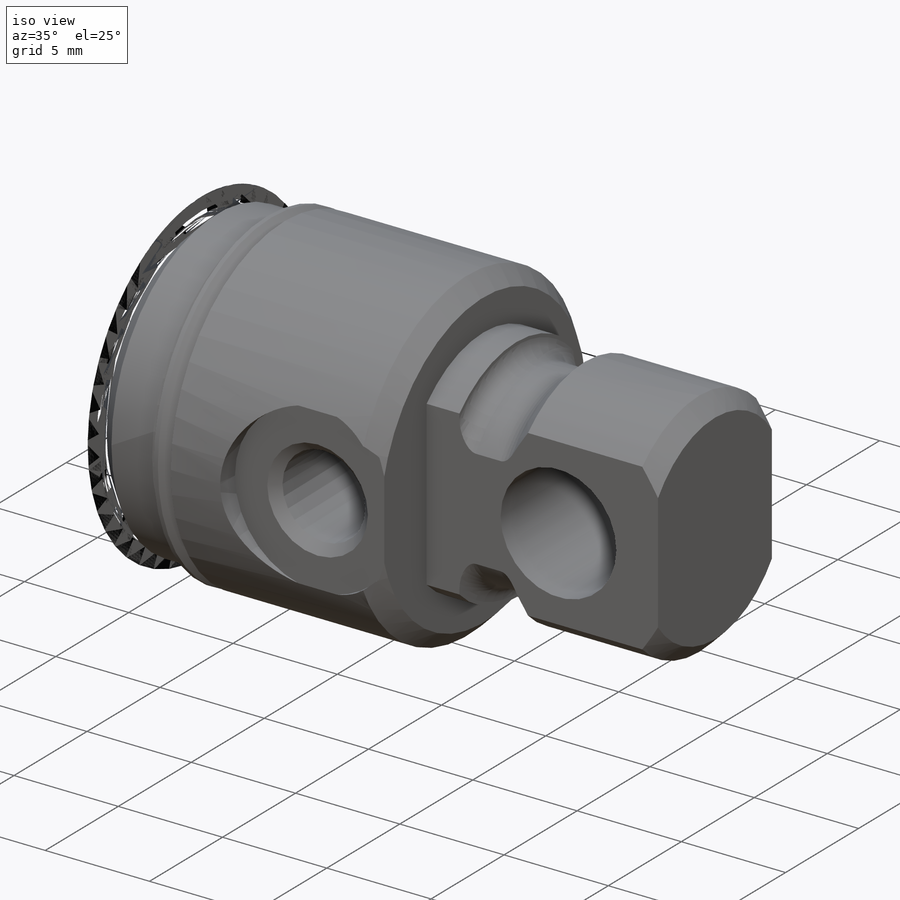
[diagram: iso view]
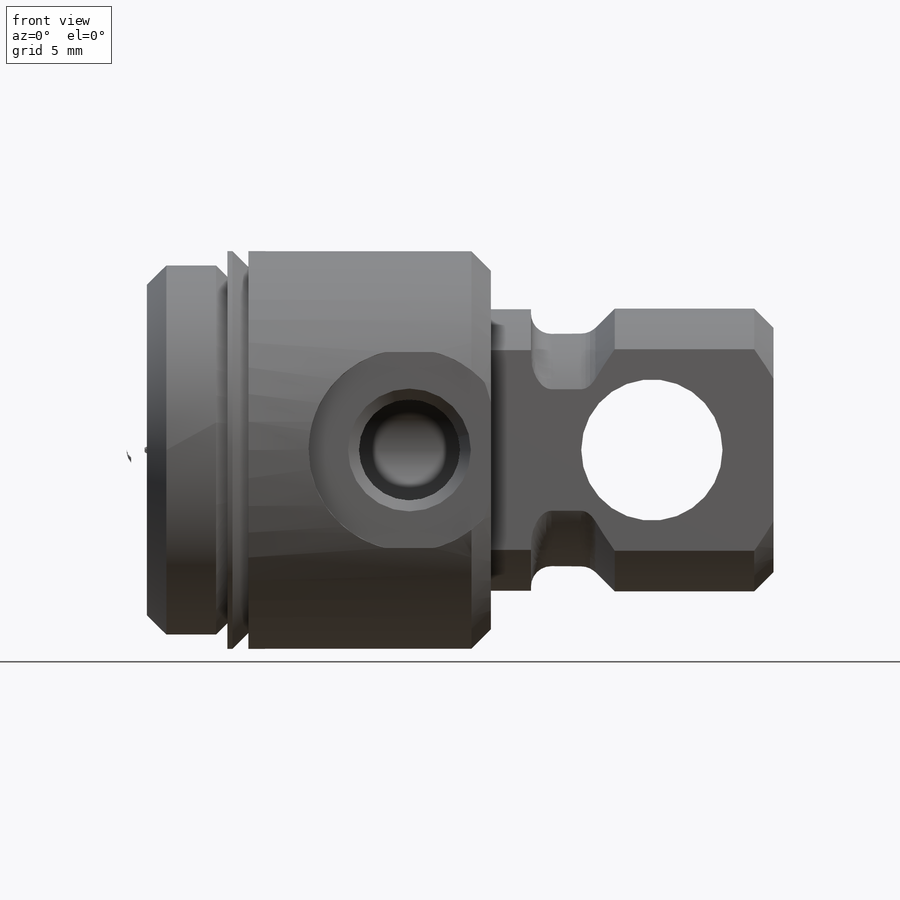
[diagram: front view]
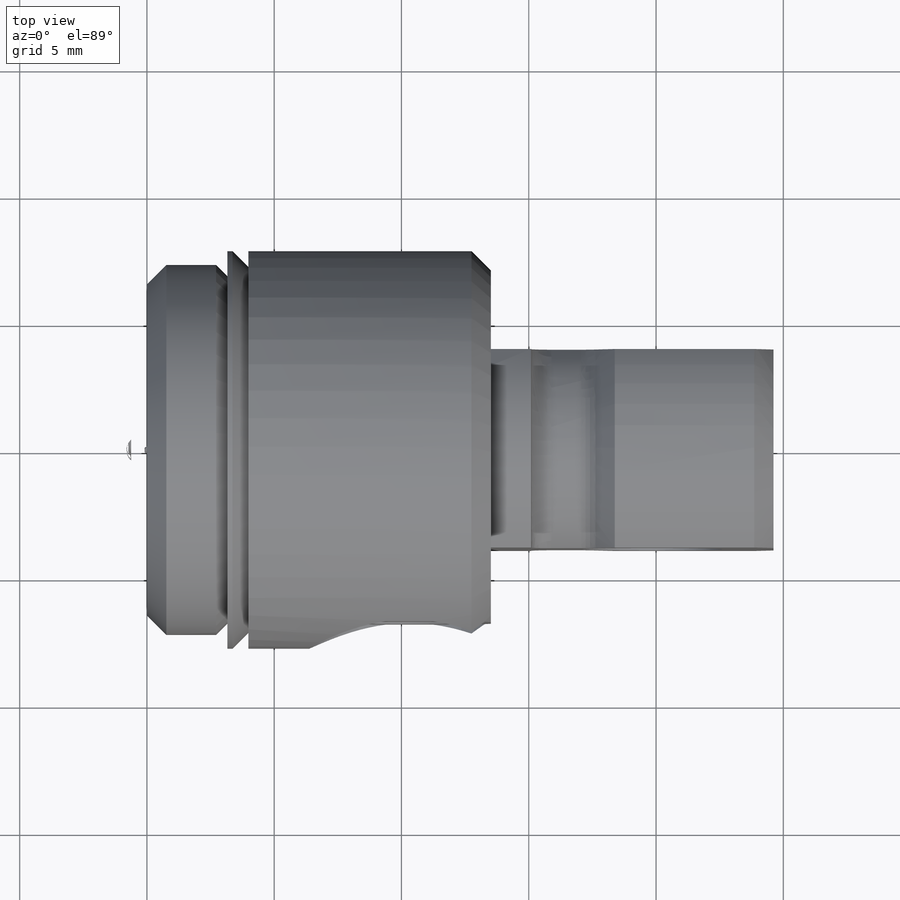
[diagram: top view]
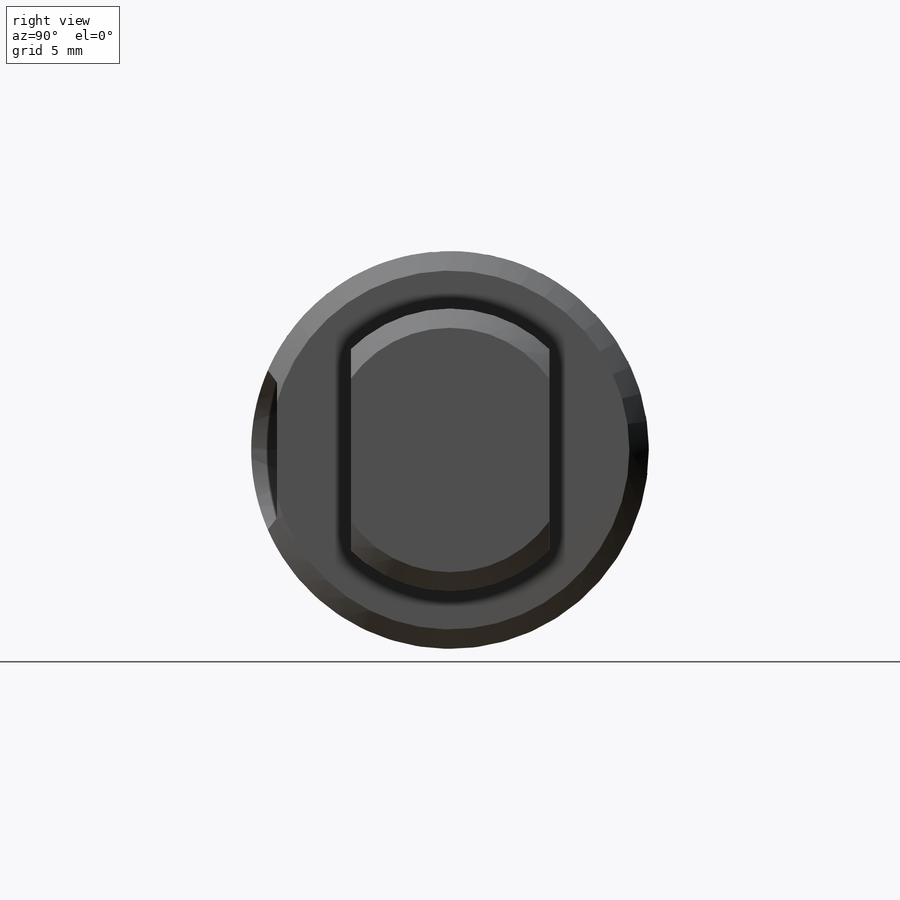
[diagram: right view]
SOLIDWORKS PART (.sldprt)
format: sldprt  version: not decoded by parser v0  size: 647,680 bytes
history: native  units: mm
features: plane x81, sketch x30, revolve x3, thread x2, cut_extrude x2, cut_revolve x2, material x1, hole x1 (+79 scaffold rows collapsed)
feature tree (201):
  scaffold x79  (default folders/planes/origin — collapsed)
  material  "Cast Alloy Steel"
  plane  "Plane1"  Offset=24.6126mm
  sketch  "Sketch1"
  revolve  "Revolve1"  Angle=360deg
  sketch  "Sketch2"
  revolve  "Revolve2"  [1 undecoded]
  thread  "Cosmetic Thread1"  Diameter=6.990744mm  [1 undecoded]
  sketch  "Sketch3"
  cut_extrude  "Cut-Extrude1"  Depth=11.0998mm
  plane  "Plane2"  Offset=13.5128mm
  hole  "Hole1"  Diameter=3.9116mm Depth=12.2936mm
  sketch  "Sketch5"
  sketch  "Sketch4"  dims[c1.D1=~97.659253deg c1.D2=~82.982399deg c1.Diameter=3.9116mm c2.D2=100.0mm c2.D3=~82.982399deg c2.D4=90.0deg c3.D3=~97.716715deg c3.Depth=12.2936mm c3.Drill Angle=120.0deg]
  plane  "Plane3"
  sketch  "Sketch6"
  cut_revolve  "Cut-Revolve1"  [1 undecoded]
  thread  "Cosmetic Thread2"  Diameter=4.8387mm  [1 undecoded]
  plane  "Plane4"  Offset=10.3124mm
  plane  "Plane5"  Offset=3.3528mm
  sketch  "Sketch7"
  revolve  "Revolve3"  Angle=360deg
  plane  "Plane6"  Offset=24.7396mm
  sketch  "Sketch8"
  cut_extrude  "Cut-Extrude2"  Depth=5.84835mm
  plane  "Plane7"  Offset=15.0876mm
  plane  "Plane8"  Offset=19.9644mm
  plane  "Plane9"  Offset=19.8374mm
  plane  "Plane10"  Offset=24.6126mm
  plane  "Plane11"  Offset=0mm
  plane  "Plane12"  Offset=15.0876mm
  plane  "Plane13"
  plane  "Plane14"  Offset=0mm
  plane  "Plane15"  Offset=13.5128mm
  cut_revolve  "Folder1___EndTag___"  [1 undecoded]
  plane  "1 XY"
  plane  "1 XZ"
  plane  "1 YZ"
  sketch  "1"
  plane  "c1 XY"
  plane  "c1 XZ"
  plane  "c1 YZ"
  sketch  "c1"
  plane  "c2 XY"
  plane  "c2 XZ"
  plane  "c2 YZ"
  sketch  "c2"
  plane  "cc1 XY"
  plane  "cc1 XZ"
  plane  "cc1 YZ"
  sketch  "cc1"
  plane  "cc2 XY"
  plane  "cc2 XZ"
  plane  "cc2 YZ"
  sketch  "cc2"
  plane  "lovra1 XY"
  plane  "lovra1 XZ"
  plane  "lovra1 YZ"
  sketch  "lovra1"
  plane  "lovra2 XY"
  plane  "lovra2 XZ"
  plane  "lovra2 YZ"
  sketch  "lovra2"
  plane  "lovra21 XY"
  plane  "lovra21 XZ"
  plane  "lovra21 YZ"
  sketch  "lovra21"
  plane  "lovra22 XY"
  plane  "lovra22 XZ"
  plane  "lovra22 YZ"
  sketch  "lovra22"
  plane  "lovra3 XY"
  plane  "lovra3 XZ"
  plane  "lovra3 YZ"
  sketch  "lovra3"
  plane  "olen XY"
  plane  "olen XZ"
  plane  "olen YZ"
  sketch  "olen"
  plane  "p1 XY"
  plane  "p1 XZ"
  plane  "p1 YZ"
  sketch  "p1"
  plane  "p2 XY"
  plane  "p2 XZ"
  plane  "p2 YZ"
  sketch  "p2"
  plane  "port XY"
  plane  "port XZ"
  plane  "port YZ"
  sketch  "port"
  plane  "port2 XY"
  plane  "port2 XZ"
  plane  "port2 YZ"
  sketch  "port2"
  plane  "thd1 XY"
  plane  "thd1 XZ"
  plane  "thd1 YZ"
  sketch  "thd1"
  plane  "thd2 XY"
  plane  "thd2 XZ"
  plane  "thd2 YZ"
  sketch  "thd2"
  plane  "to_mounting_bracket XY"
  plane  "to_mounting_bracket XZ"
  plane  "to_mounting_bracket YZ"
  sketch  "to_mounting_bracket"
  plane  "to_nut XY"
  plane  "to_nut XZ"
  plane  "to_nut YZ"
  sketch  "to_nut"
  plane  "to_pin XY"
  plane  "to_pin XZ"
  plane  "to_pin YZ"
  sketch  "to_pin"
  plane  "to_screw XY"
  plane  "to_screw XZ"
  plane  "to_screw YZ"
  sketch  "to_screw"
  plane  "to_tube XY"
  plane  "to_tube XZ"
  plane  "to_tube YZ"
  sketch  "to_tube"
decode coverage: 8 of 40 modeling features carry decoded parameters
note: ~ marks probable driven/reference dimensions
note: 5 parameter values undecoded
summary: no parameter record found for 3 features
note: suppression state not decoded; provenance and decode notes live in map.json
